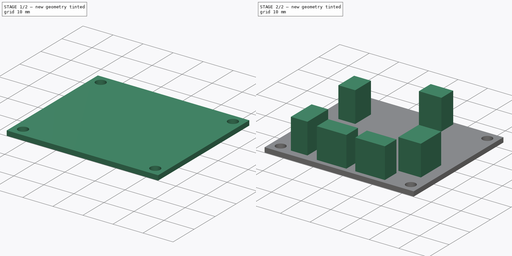
[diagram: build sequence overview — one tinted view per stage of 2, left to right]
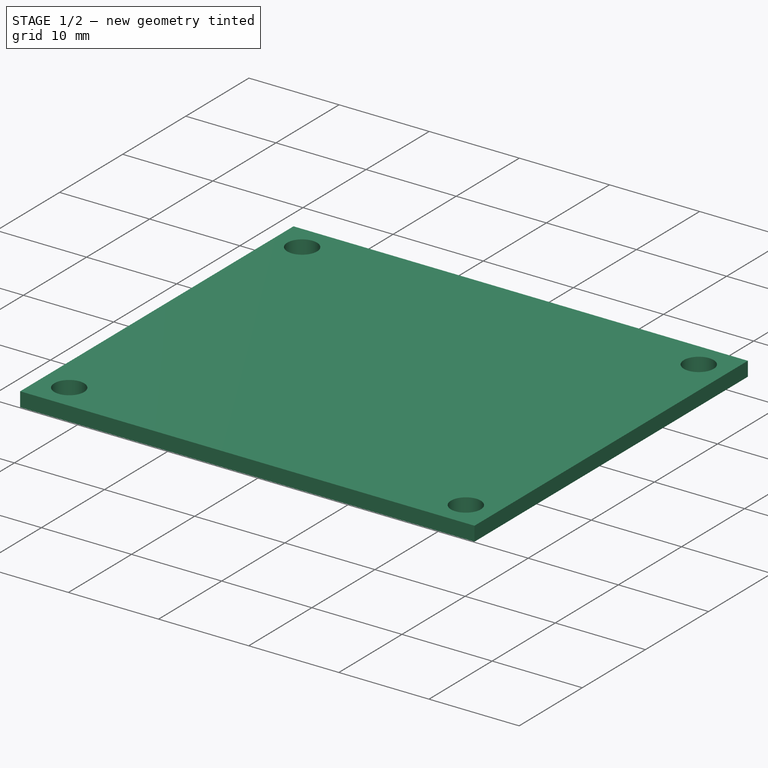
[diagram: stage 1 of 2 — iso view after this stage's code; geometry added in this stage tinted green]
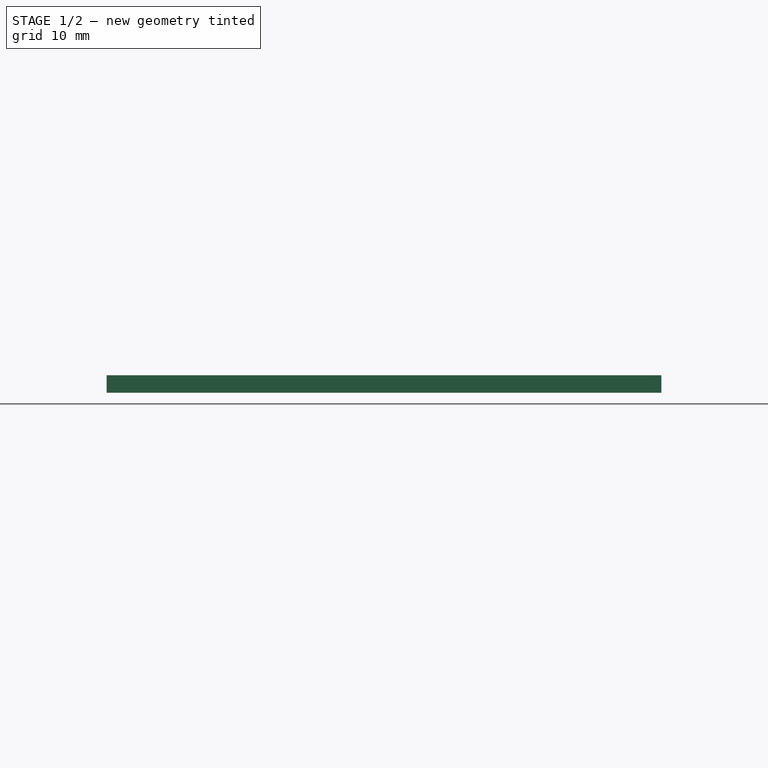
[diagram: stage 1 of 2 — front view after this stage's code; geometry added in this stage tinted green]
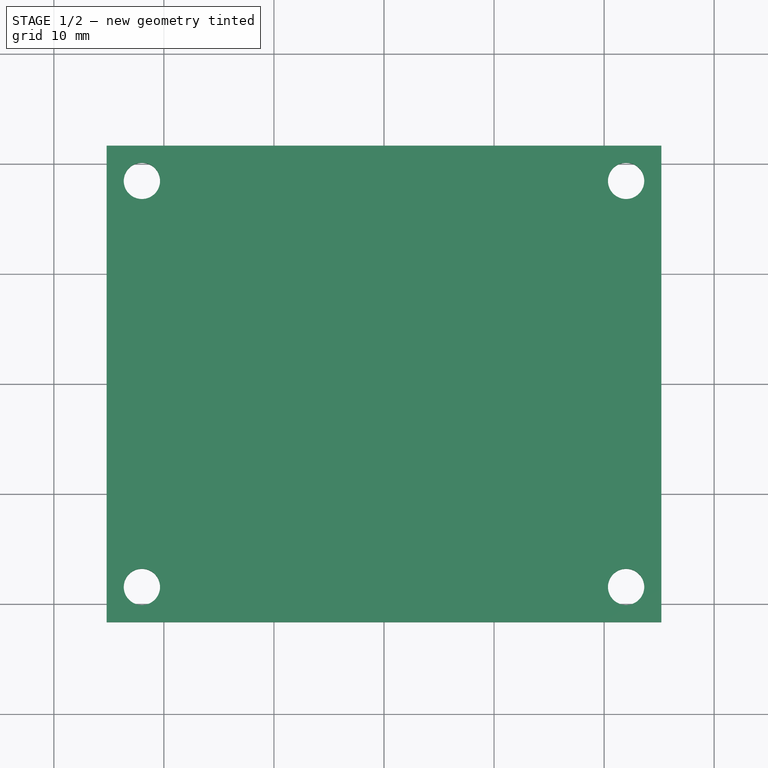
[diagram: stage 1 of 2 — top view after this stage's code; geometry added in this stage tinted green]
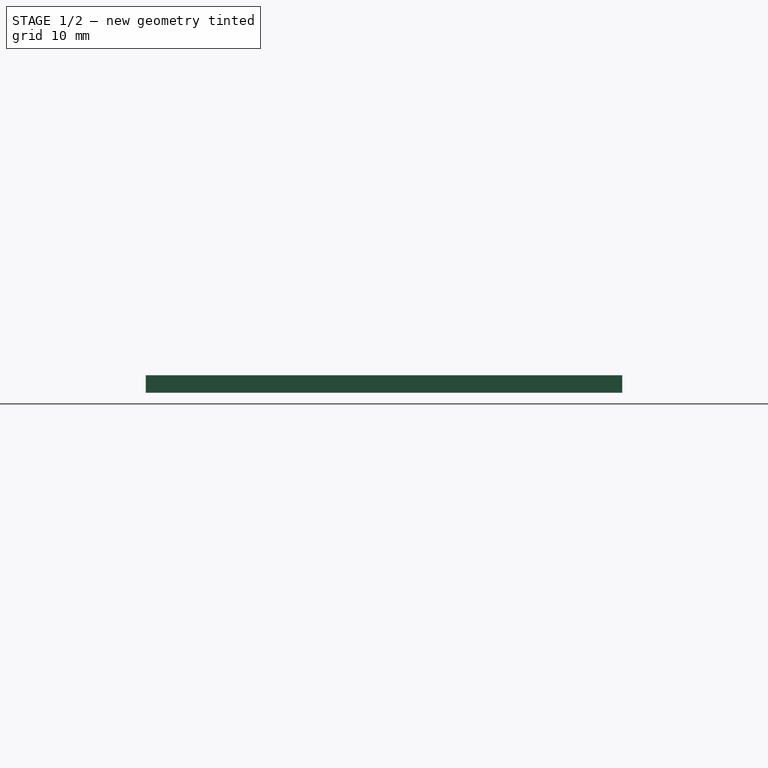
[diagram: stage 1 of 2 — right view after this stage's code; geometry added in this stage tinted green]
FCSTD DOCUMENT  (FreeCAD 0.19R24276 (Git))
Label: pcb
License: All rights reserved
LicenseURL: http://en.wikipedia.org/wiki/All_rights_reserved
objects: Sketcher::SketchObject×3, PartDesign::Pad×2, PartDesign::Hole×1, PartDesign::Body×1
note: 10 computed .brp shape members not serialized (recipe doc carries the construction recipe); baked Part::Feature solids carry a one-line shape summary decoded from their .brp

FEATURE [Sketcher::SketchObject] Sketch  label="base"
  FullyConstrained = true
  MapMode = 5
  Support = -> [XY_Plane]
  sketch-geometry (4):
    g0: LineSegment StartX=-25.2 StartY=21.65 StartZ=0 EndX=25.2 EndY=21.65 EndZ=0
    g1: LineSegment StartX=25.2 StartY=21.65 StartZ=0 EndX=25.2 EndY=-21.65 EndZ=0
    g2: LineSegment StartX=25.2 StartY=-21.65 StartZ=0 EndX=-25.2 EndY=-21.65 EndZ=0
    g3: LineSegment StartX=-25.2 StartY=-21.65 StartZ=0 EndX=-25.2 EndY=21.65 EndZ=0
  constraints (12):
    c: Coincident(g0,g1)
    c: Coincident(g1,g2)
    c: Coincident(g2,g3)
    c: Coincident(g3,g0)
    c: Horizontal(g0)
    c: Horizontal(g2)
    c: Vertical(g1)
    c: Vertical(g3)
    c: DistanceX(g0,g-1) = 25.2
    c: DistanceX(g-1,g0) = 25.2
    c: DistanceY(g-1,g0) = 21.65
    c: DistanceY(g2,g-1) = 21.65
FEATURE [PartDesign::Pad] Pad  label="base_pad"
  Direction = (1,1,1)
  Length = 1.6
  Length2 = 100
  Profile = -> Sketch
  Type = 0
FEATURE [Sketcher::SketchObject] Sketch001  label="holes"
  FullyConstrained = true
  MapMode = 5
  Placement = pos=(0,0,1.6) rot=(0,0,1;0rad)
  Support = -> [Pad]
  sketch-geometry (4):
    g0: Circle CenterX=-22 CenterY=18.45 CenterZ=0 NormalX=0 NormalY=0 NormalZ=1 AngleXU=0 Radius=1.65
    g1: Circle CenterX=22 CenterY=18.45 CenterZ=0 NormalX=0 NormalY=0 NormalZ=1 AngleXU=0 Radius=1.65
    g2: Circle CenterX=-22 CenterY=-18.45 CenterZ=0 NormalX=0 NormalY=0 NormalZ=1 AngleXU=0 Radius=1.65
    g3: Circle CenterX=22 CenterY=-18.45 CenterZ=0 NormalX=0 NormalY=0 NormalZ=1 AngleXU=0 Radius=1.65
  constraints (12):
    c: Radius(g0) = 1.65
    c: Radius(g2) = 1.65
    c: Radius(g1) = 1.65
    c: Radius(g3) = 1.65
    c: DistanceX(g0,g-1) = 22
    c: DistanceX(g-1,g1) = 22
    c: DistanceX(g2,g-1) = 22
    c: DistanceX(g-1,g3) = 22
    c: DistanceY(g-1,g0) = 18.45
    c: DistanceY(g-1,g1) = 18.45
    c: DistanceY(g3,g-1) = 18.45
    c: DistanceY(g2,g-1) = 18.45
FEATURE [PartDesign::Hole] Hole  label="holes_hole"
  BaseFeature = -> Pad
  Depth = 25
  DepthType = 1
  Diameter = 3.3
  DrillForDepth = false
  DrillPoint = 1
  DrillPointAngle = 118
  HoleCutCountersinkAngle = 90
  HoleCutCustomValues = false
  HoleCutDepth = 0
  HoleCutDiameter = 6.1
  HoleCutType = 0
  ModelActualThread = false
  Profile = -> Sketch001
  Tapered = false
  TaperedAngle = 90
  ThreadAngle = 0
  ThreadClass = 0
  ThreadCutOffInner = 0
  ThreadCutOffOuter = 0
  ThreadDirection = 0
  ThreadFit = 0
  ThreadPitch = 0
  ThreadSize = 0
  ThreadType = 0
  Threaded = false
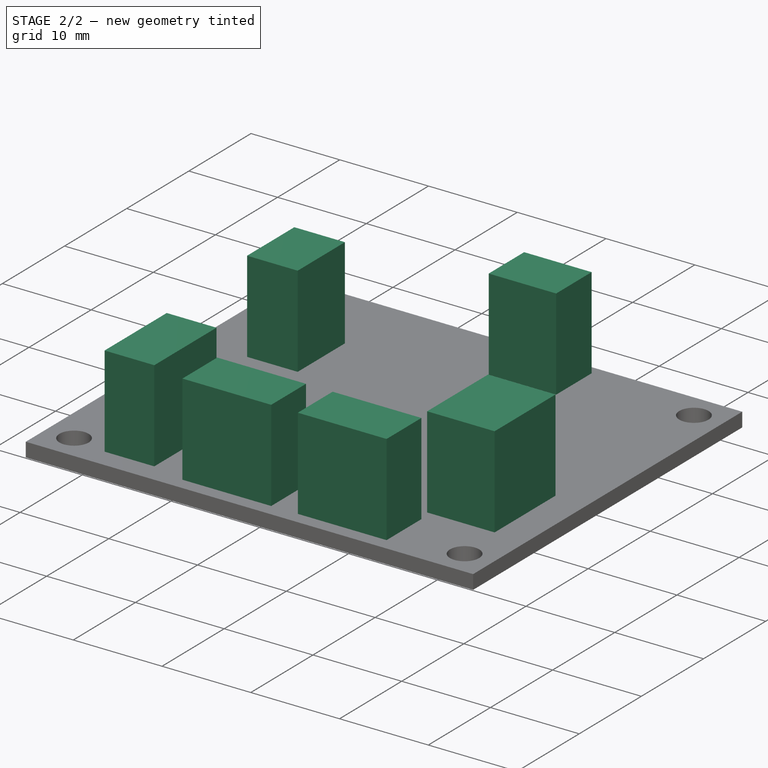
[diagram: stage 2 of 2 — iso view after this stage's code; geometry added in this stage tinted green]
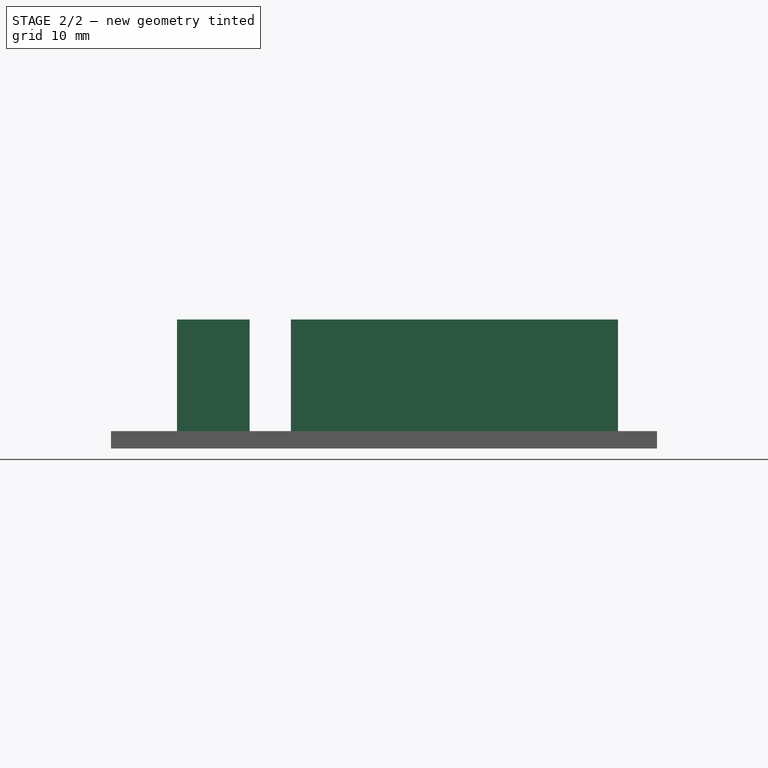
[diagram: stage 2 of 2 — front view after this stage's code; geometry added in this stage tinted green]
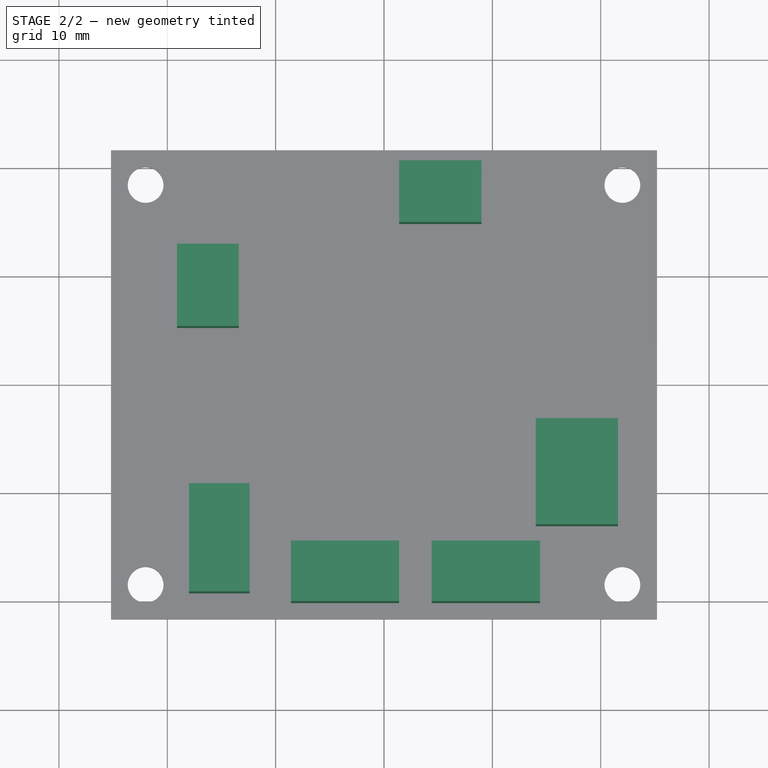
[diagram: stage 2 of 2 — top view after this stage's code; geometry added in this stage tinted green]
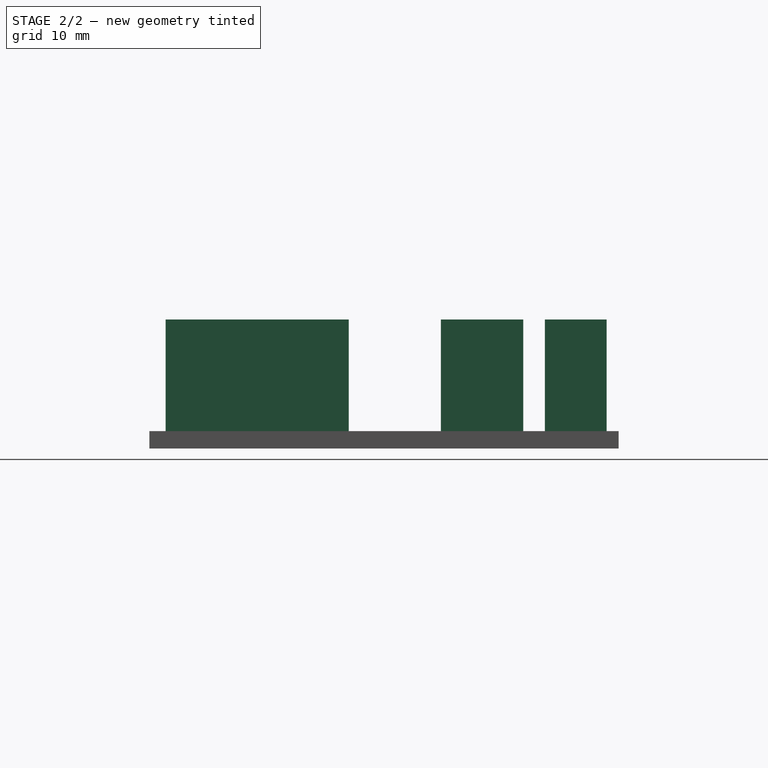
[diagram: stage 2 of 2 — right view after this stage's code; geometry added in this stage tinted green]
FEATURE [Sketcher::SketchObject] Sketch002  label="connectors"
  FullyConstrained = true
  MapMode = 5
  Placement = pos=(0,0,1.6) rot=(0,0,1;0rad)
  Support = -> [Hole]
  sketch-geometry (24):
    g0: LineSegment StartX=4.4 StartY=-14.55 StartZ=0 EndX=14.4 EndY=-14.55 EndZ=0
    g1: LineSegment StartX=14.4 StartY=-14.55 StartZ=0 EndX=14.4 EndY=-20.15 EndZ=0
    g2: LineSegment StartX=14.4 StartY=-20.15 StartZ=0 EndX=4.4 EndY=-20.15 EndZ=0
    g3: LineSegment StartX=4.4 StartY=-20.15 StartZ=0 EndX=4.4 EndY=-14.55 EndZ=0
    g4: LineSegment StartX=-8.6 StartY=-14.55 StartZ=0 EndX=1.4 EndY=-14.55 EndZ=0
    g5: LineSegment StartX=1.4 StartY=-14.55 StartZ=0 EndX=1.4 EndY=-20.15 EndZ=0
    g6: LineSegment StartX=1.4 StartY=-20.15 StartZ=0 EndX=-8.6 EndY=-20.15 EndZ=0
    g7: LineSegment StartX=-8.6 StartY=-20.15 StartZ=0 EndX=-8.6 EndY=-14.55 EndZ=0
    g8: LineSegment StartX=-18 StartY=-9.25 StartZ=0 EndX=-12.4 EndY=-9.25 EndZ=0
    g9: LineSegment StartX=-12.4 StartY=-9.25 StartZ=0 EndX=-12.4 EndY=-19.25 EndZ=0
    g10: LineSegment StartX=-12.4 StartY=-19.25 StartZ=0 EndX=-18 EndY=-19.25 EndZ=0
    g11: LineSegment StartX=-18 StartY=-19.25 StartZ=0 EndX=-18 EndY=-9.25 EndZ=0
    g12: LineSegment StartX=-19.1 StartY=12.85 StartZ=0 EndX=-13.4 EndY=12.85 EndZ=0
    g13: LineSegment StartX=-13.4 StartY=12.85 StartZ=0 EndX=-13.4 EndY=5.25 EndZ=0
    g14: LineSegment StartX=-13.4 StartY=5.25 StartZ=0 EndX=-19.1 EndY=5.25 EndZ=0
    g15: LineSegment StartX=-19.1 StartY=5.25 StartZ=0 EndX=-19.1 EndY=12.85 EndZ=0
    g16: LineSegment StartX=1.4 StartY=20.55 StartZ=0 EndX=9 EndY=20.55 EndZ=0
    g17: LineSegment StartX=9 StartY=20.55 StartZ=0 EndX=9 EndY=14.85 EndZ=0
    g18: LineSegment StartX=9 StartY=14.85 StartZ=0 EndX=1.4 EndY=14.85 EndZ=0
    g19: LineSegment StartX=1.4 StartY=14.85 StartZ=0 EndX=1.4 EndY=20.55 EndZ=0
    g20: LineSegment StartX=14 StartY=-3.25 StartZ=0 EndX=21.6 EndY=-3.25 EndZ=0
    g21: LineSegment StartX=21.6 StartY=-3.25 StartZ=0 EndX=21.6 EndY=-13.05 EndZ=0
    g22: LineSegment StartX=21.6 StartY=-13.05 StartZ=0 EndX=14 EndY=-13.05 EndZ=0
    g23: LineSegment StartX=14 StartY=-13.05 StartZ=0 EndX=14 EndY=-3.25 EndZ=0
  constraints (72):
    c: Coincident(g0,g1)
    c: Coincident(g1,g2)
    c: Coincident(g2,g3)
    c: Coincident(g3,g0)
    c: Horizontal(g0)
    c: Horizontal(g2)
    c: Vertical(g1)
    c: Vertical(g3)
    c: DistanceX(g0,g0) = 10
    c: DistanceY(g3,g3) = 5.6
    c: DistanceX(g-1,g0) = 14.4
    c: DistanceY(g1,g-1) = 20.15
    c: Coincident(g4,g5)
    c: Coincident(g5,g6)
    c: Coincident(g6,g7)
    c: Coincident(g7,g4)
    c: Horizontal(g4)
    c: Horizontal(g6)
    c: Vertical(g5)
    c: Vertical(g7)
    c: DistanceX(g4,g0) = 3
    c: DistanceX(g4,g4) = 10
    c: DistanceY(g7,g7) = 5.6
    c: DistanceY(g6,g-1) = 20.15
    c: Coincident(g8,g9)
    c: Coincident(g9,g10)
    c: Coincident(g10,g11)
    c: Coincident(g11,g8)
    c: Horizontal(g8)
    c: Horizontal(g10)
    c: Vertical(g9)
    c: Vertical(g11)
    c: DistanceY(g11,g11) = 10
    c: DistanceX(g8,g8) = 5.6
    c: DistanceX(g9,g4) = 3.8
    c: DistanceY(g9,g-1) = 19.25
    c: Coincident(g12,g13)
    c: Coincident(g13,g14)
    c: Coincident(g14,g15)
    c: Coincident(g15,g12)
    c: Horizontal(g12)
    c: Horizontal(g14)
    c: Vertical(g13)
    c: Vertical(g15)
    c: DistanceY(g15,g15) = 7.6
    c: DistanceX(g12,g12) = 5.7
    c: DistanceX(g12,g-1) = 19.1
    c: DistanceY(g-1,g12) = 12.85
    c: Coincident(g16,g17)
    c: Coincident(g17,g18)
    c: Coincident(g18,g19)
    c: Coincident(g19,g16)
    c: Horizontal(g16)
    c: Horizontal(g18)
    c: Vertical(g17)
    c: Vertical(g19)
    c: DistanceX(g16,g16) = 7.6
    c: DistanceY(g17,g17) = 5.7
    c: DistanceX(g-1,g17) = 9
    c: DistanceY(g-1,g16) = 20.55
    c: Coincident(g20,g21)
    c: Coincident(g21,g22)
    c: Coincident(g22,g23)
    c: Coincident(g23,g20)
    c: Horizontal(g20)
    c: Horizontal(g22)
    c: Vertical(g21)
    c: Vertical(g23)
    c: DistanceY(g21,g21) = 9.8
    c: DistanceX(g20,g20) = 7.6
    c: DistanceY(g22,g-1) = 13.05
    c: DistanceX(g-1,g20) = 21.6
FEATURE [PartDesign::Pad] Pad001  label="connectors_pad"
  BaseFeature = -> Hole
  Direction = (1,1,1)
  Length = 10.3
  Length2 = 100
  Profile = -> Sketch002
  Type = 0
FEATURE [PartDesign::Body] Body
  Group = -> [Sketch,Pad,Sketch001,Hole,Sketch002,Pad001]
  Origin = -> Origin
  Tip = -> Pad001
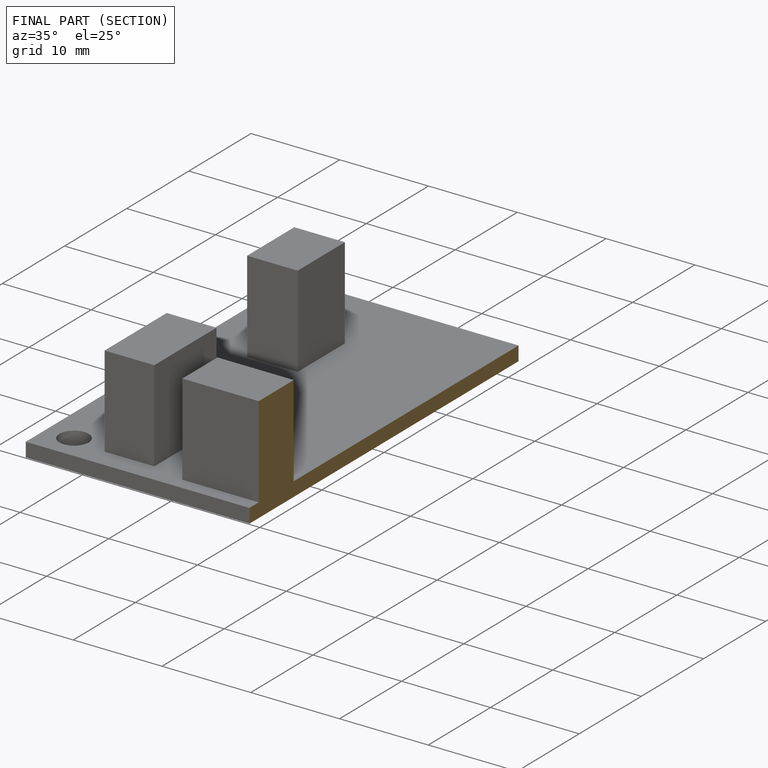
[diagram: finished part — half-section view (interior)]
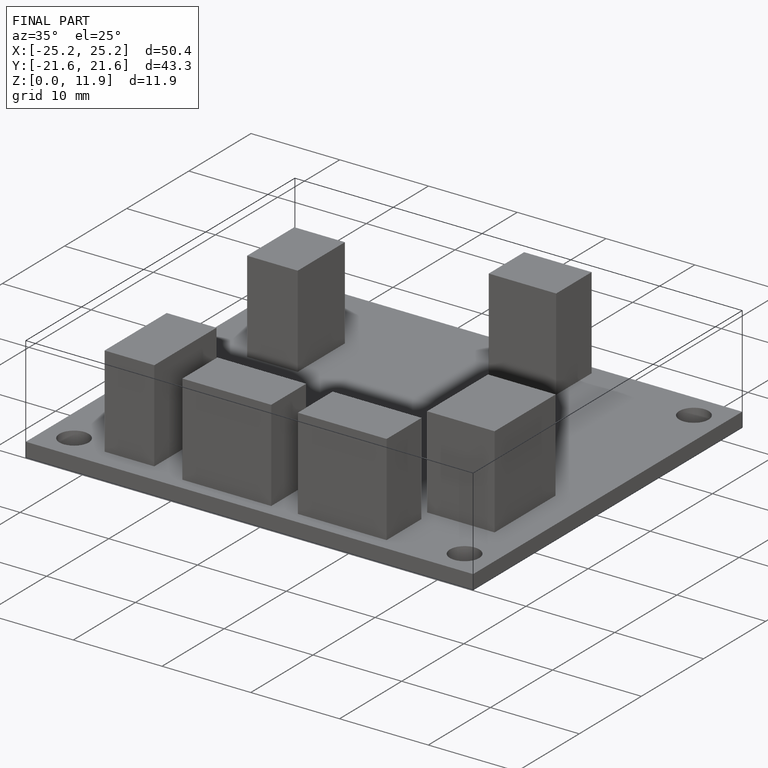
[diagram: finished part — iso view with bounding-box wireframe]
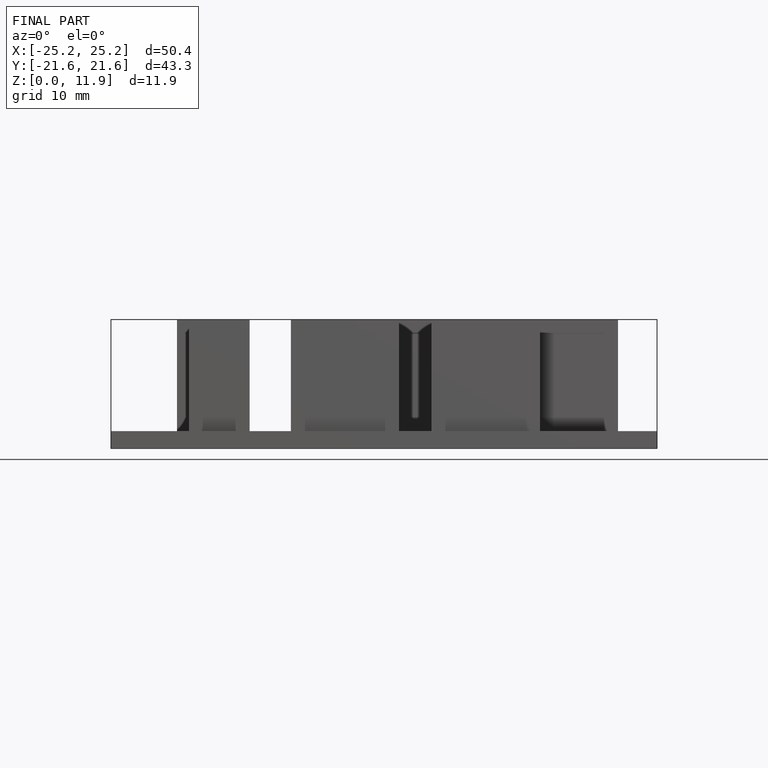
[diagram: finished part — front view with bounding-box wireframe]
